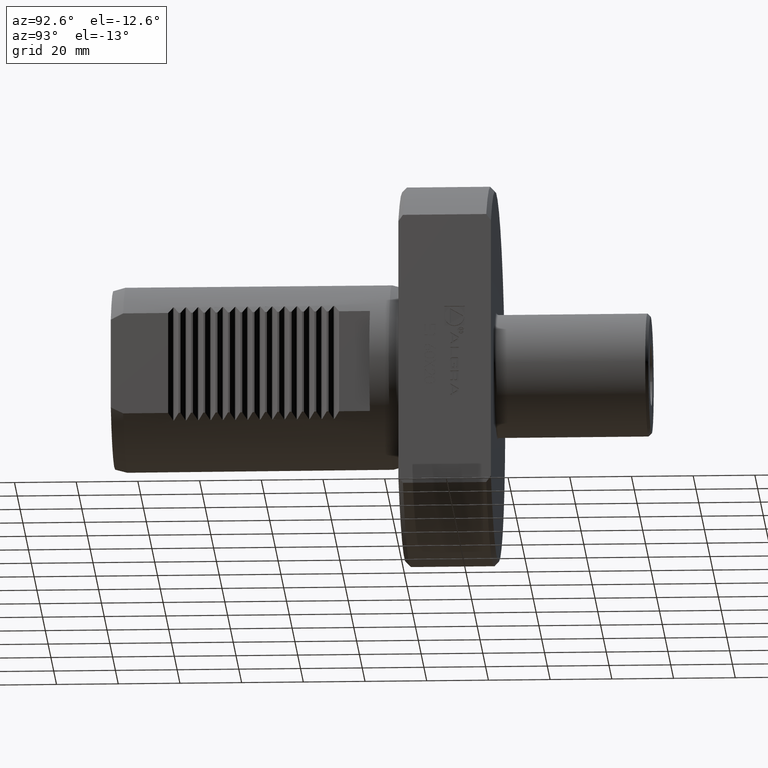
[diagram: clean part render]
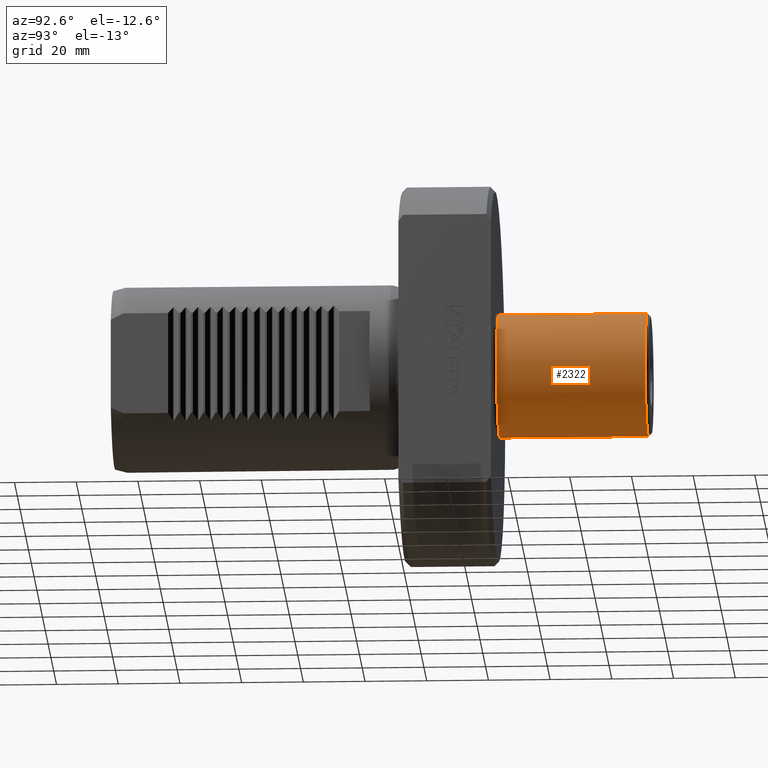
[diagram: same view with one face highlighted and labeled with its STEP entity id]
A machine part, auxiliary view. The second image highlights one B-rep face of the part: STEP entity #2322.
In plain terms, the highlighted cylindrical surface (bore or boss wall) has radius 20 mm, axis along (-0, 1, -0).
Its self-contained STEP definition (entity closure, byte-faithful):
#822 = ORIENTED_EDGE ( 'NONE', *, *, #4051, .F. ) ;
#1727 = CARTESIAN_POINT ( 'NONE',  ( -20.00000000000000355, 30.79999999999999361, 0.000000000000000000 ) ) ;
#1787 = EDGE_LOOP ( 'NONE', ( #9360 ) ) ;
#2149 = DIRECTION ( 'NONE',  ( -1.000000000000000000, 0.000000000000000000, 0.000000000000000000 ) ) ;
#2322 = ADVANCED_FACE ( 'Defeature completata1_15', ( #8269, #5133 ), #13810, .T. ) ;
#2388 = AXIS2_PLACEMENT_3D ( 'NONE', #8407, #11468, #2905 ) ;
#2523 = CARTESIAN_POINT ( 'NONE',  ( -20.00000000000000355, 79.00000000000000000, 0.000000000000000000 ) ) ;
#2905 = DIRECTION ( 'NONE',  ( -1.000000000000000000, -1.295371175675670281E-16, 0.000000000000000000 ) ) ;
#3628 = EDGE_LOOP ( 'NONE', ( #822 ) ) ;
#3804 = CIRCLE ( 'NONE', #12205, 19.99999999999999289 ) ;
#4051 = EDGE_CURVE ( 'NONE', #4900, #4900, #3804, .T. ) ;
#4900 = VERTEX_POINT ( 'NONE', #2523 ) ;
#5133 = FACE_OUTER_BOUND ( 'NONE', #3628, .T. ) ;
#8269 = FACE_OUTER_BOUND ( 'NONE', #1787, .T. ) ;
#8407 = CARTESIAN_POINT ( 'NONE',  ( 0.000000000000000000, 0.000000000000000000, 0.000000000000000000 ) ) ;
#8510 = DIRECTION ( 'NONE',  ( -1.000000000000000000, -1.734723475976807094E-16, 0.000000000000000000 ) ) ;
#8951 = DIRECTION ( 'NONE',  ( -1.295371175675670281E-16, 1.000000000000000000, -0.000000000000000000 ) ) ;
#8986 = EDGE_CURVE ( 'NONE', #10160, #10160, #12830, .T. ) ;
#9360 = ORIENTED_EDGE ( 'NONE', *, *, #8986, .T. ) ;
#10012 = CARTESIAN_POINT ( 'NONE',  ( -1.023343228783779527E-14, 79.00000000000000000, 0.000000000000000000 ) ) ;
#10160 = VERTEX_POINT ( 'NONE', #1727 ) ;
#10578 = AXIS2_PLACEMENT_3D ( 'NONE', #13908, #10653, #8510 ) ;
#10653 = DIRECTION ( 'NONE',  ( -1.295371175675670281E-16, 1.000000000000000000, -0.000000000000000000 ) ) ;
#11468 = DIRECTION ( 'NONE',  ( -1.295371175675670281E-16, 1.000000000000000000, -0.000000000000000000 ) ) ;
#12205 = AXIS2_PLACEMENT_3D ( 'NONE', #10012, #8951, #2149 ) ;
#12830 = CIRCLE ( 'NONE', #10578, 20.00000000000000000 ) ;
#13810 = CYLINDRICAL_SURFACE ( 'NONE', #2388, 19.99999999999999645 ) ;
#13908 = CARTESIAN_POINT ( 'NONE',  ( -3.989743221081063893E-15, 30.79999999999999716, 0.000000000000000000 ) ) ;